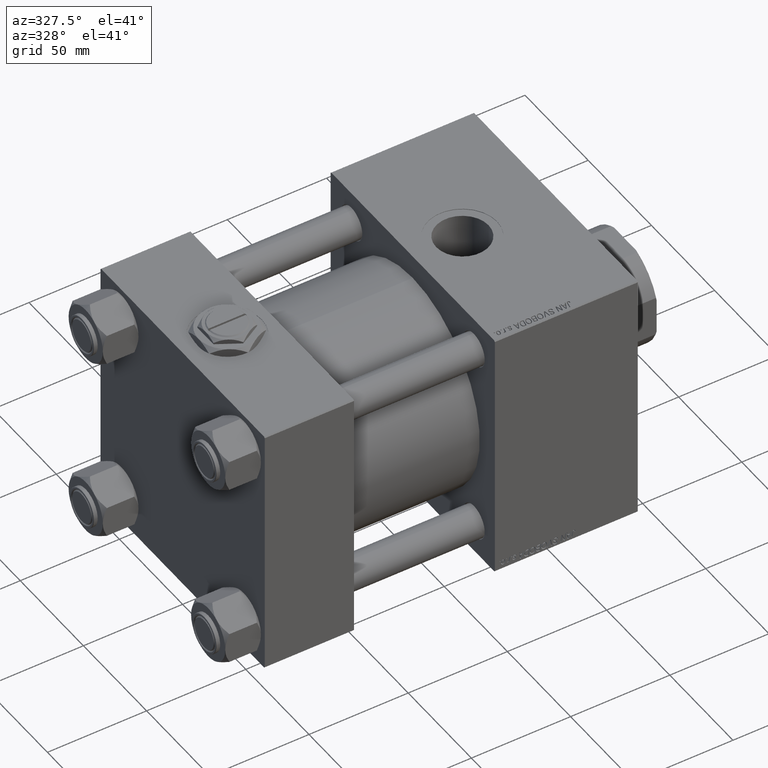
[diagram: clean part render]
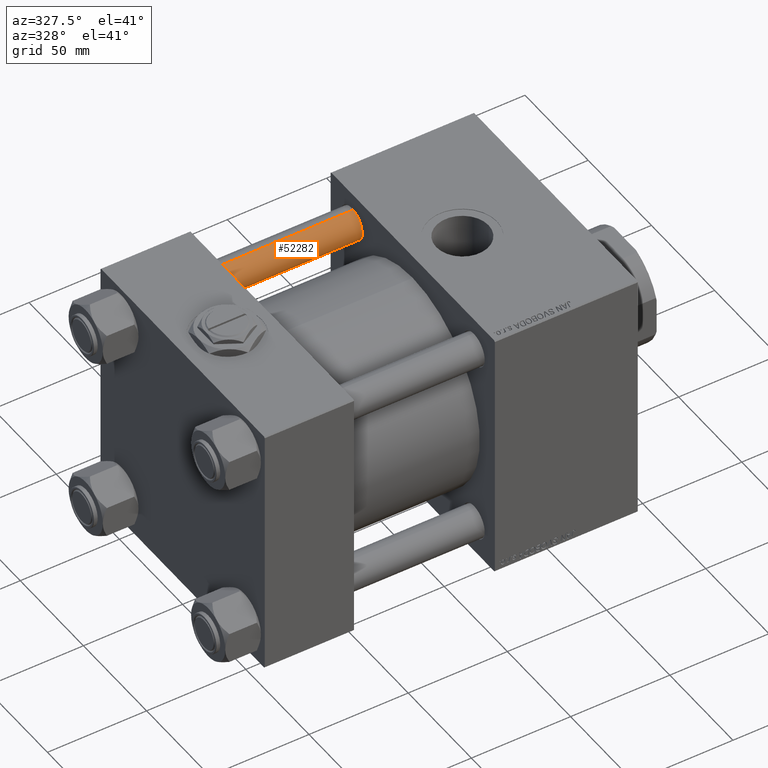
[diagram: same view with one face highlighted and labeled with its STEP entity id]
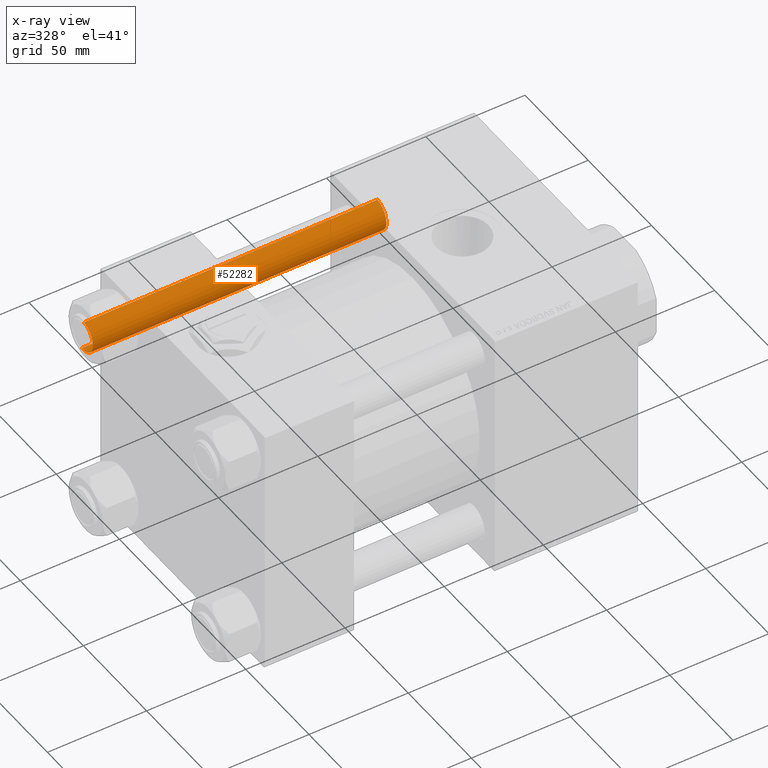
[diagram: x-ray of the same camera — body ghosted, the highlighted face saturated]
A machine part, auxiliary view. The second image highlights one B-rep face of the part: STEP entity #52282.
The next image is the same camera in x-ray: the body ghosted, the highlighted face saturated — about 0% of this face is hidden behind the body in this view.
In plain terms, the highlighted cylindrical surface (edge-blend (fillet) strip) has radius 8 mm, axis along (-1, 0, 0).
Its self-contained STEP definition (entity closure, byte-faithful):
#3 = ORIENTED_EDGE ( 'NONE', *, *, #41762, .T. ) ;
#978 = DIRECTION ( 'NONE',  ( -0.000000000000000000, -0.000000000000000000, 1.000000000000000000 ) ) ;
#3707 = ORIENTED_EDGE ( 'NONE', *, *, #9240, .T. ) ;
#3832 = AXIS2_PLACEMENT_3D ( 'NONE', #6726, #10751, #39398 ) ;
#4974 = VERTEX_POINT ( 'NONE', #35171 ) ;
#6081 = EDGE_CURVE ( 'NONE', #9768, #15914, #28975, .T. ) ;
#6668 = LINE ( 'NONE', #47907, #52228 ) ;
#6726 = CARTESIAN_POINT ( 'NONE',  ( 0.000000000000000000, 0.000000000000000000, 148.5000000000000000 ) ) ;
#9240 = EDGE_CURVE ( 'NONE', #4974, #15914, #29486, .T. ) ;
#9768 = VERTEX_POINT ( 'NONE', #10453 ) ;
#9838 = CIRCLE ( 'NONE', #3832, 8.000000000000000000 ) ;
#10280 = EDGE_LOOP ( 'NONE', ( #30600, #33615, #3, #3707 ) ) ;
#10453 = CARTESIAN_POINT ( 'NONE',  ( 8.000000000000000000, 9.797174393178825657E-16, 148.5000000000000000 ) ) ;
#10751 = DIRECTION ( 'NONE',  ( 0.000000000000000000, 0.000000000000000000, -1.000000000000000000 ) ) ;
#11214 = DIRECTION ( 'NONE',  ( -0.000000000000000000, -0.000000000000000000, -1.000000000000000000 ) ) ;
#12264 = CARTESIAN_POINT ( 'NONE',  ( 0.000000000000000000, 0.000000000000000000, 0.5000000000000281997 ) ) ;
#12889 = CARTESIAN_POINT ( 'NONE',  ( 8.000000000000000000, 9.797174393178825657E-16, 0.5000000000000281997 ) ) ;
#13088 = VECTOR ( 'NONE', #29233, 1000.000000000000000 ) ;
#13529 = EDGE_CURVE ( 'NONE', #9768, #50027, #9838, .T. ) ;
#15914 = VERTEX_POINT ( 'NONE', #12889 ) ;
#15966 = CARTESIAN_POINT ( 'NONE',  ( 0.000000000000000000, 0.000000000000000000, 149.0000000000000000 ) ) ;
#17310 = DIRECTION ( 'NONE',  ( 1.000000000000000000, 0.000000000000000000, 0.000000000000000000 ) ) ;
#20503 = FACE_OUTER_BOUND ( 'NONE', #10280, .T. ) ;
#23738 = DIRECTION ( 'NONE',  ( -1.000000000000000000, 0.000000000000000000, 0.000000000000000000 ) ) ;
#28975 = LINE ( 'NONE', #41560, #13088 ) ;
#29233 = DIRECTION ( 'NONE',  ( -0.000000000000000000, -0.000000000000000000, -1.000000000000000000 ) ) ;
#29486 = CIRCLE ( 'NONE', #38018, 8.000000000000000000 ) ;
#29487 = AXIS2_PLACEMENT_3D ( 'NONE', #15966, #36058, #23738 ) ;
#30600 = ORIENTED_EDGE ( 'NONE', *, *, #6081, .F. ) ;
#33615 = ORIENTED_EDGE ( 'NONE', *, *, #13529, .T. ) ;
#35171 = CARTESIAN_POINT ( 'NONE',  ( -8.000000000000000000, 0.000000000000000000, 0.5000000000000281997 ) ) ;
#36058 = DIRECTION ( 'NONE',  ( -0.000000000000000000, -0.000000000000000000, -1.000000000000000000 ) ) ;
#38018 = AXIS2_PLACEMENT_3D ( 'NONE', #12264, #978, #17310 ) ;
#39398 = DIRECTION ( 'NONE',  ( 1.000000000000000000, 0.000000000000000000, 0.000000000000000000 ) ) ;
#40891 = CARTESIAN_POINT ( 'NONE',  ( -8.000000000000000000, 0.000000000000000000, 148.5000000000000000 ) ) ;
#41560 = CARTESIAN_POINT ( 'NONE',  ( 8.000000000000000000, 9.797174393178825657E-16, 149.0000000000000000 ) ) ;
#41762 = EDGE_CURVE ( 'NONE', #50027, #4974, #6668, .T. ) ;
#47907 = CARTESIAN_POINT ( 'NONE',  ( -8.000000000000000000, 0.000000000000000000, 149.0000000000000000 ) ) ;
#50027 = VERTEX_POINT ( 'NONE', #40891 ) ;
#52228 = VECTOR ( 'NONE', #11214, 1000.000000000000000 ) ;
#52282 = ADVANCED_FACE ( 'NONE', ( #20503 ), #52663, .T. ) ;
#52663 = CYLINDRICAL_SURFACE ( 'NONE', #29487, 8.000000000000000000 ) ;